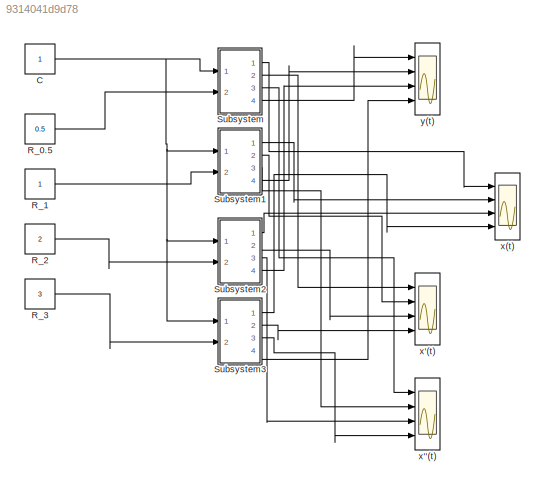
MODEL slx_9314041d9d78
KIND model
CONFIG AbsTol = auto
CONFIG FixedStep = auto
CONFIG MaxStep = auto
CONFIG MinStep = auto
CONFIG RelTol = 1e-3
CONFIG SampleTimeConstraint = Unconstrained
CONFIG Solver = VariableStepAuto
CONFIG SolverMode = Auto
CONFIG SolverName = VariableStepAuto
CONFIG StartTime = 0.0
CONFIG StopTime = 100.0
BLOCK [Constant] C
BLOCK [Constant] R_0.5
  Value = 0.5
BLOCK [Constant] R_1
BLOCK [Constant] R_2
  Value = 2
BLOCK [Constant] R_3
  Value = 3
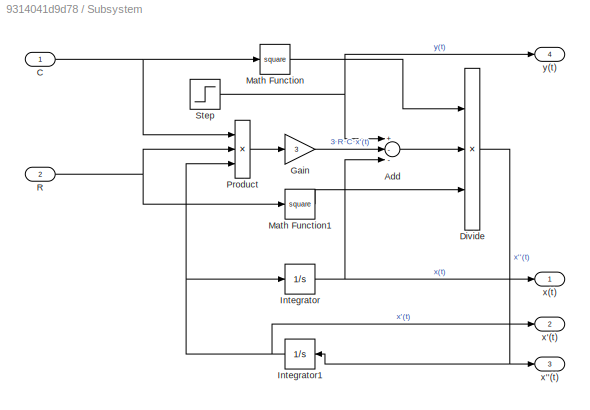
BLOCK [SubSystem] Subsystem
  Ports = [2, 4]
  RequestExecContextInheritance = off
  Variant = off
BLOCK [Sum] Subsystem/Add
  InputSameDT = off
  Inputs = +--
  OutDataTypeStr = Inherit: Inherit via internal rule
  Ports = [3, 1]
  SaturateOnIntegerOverflow = off
BLOCK [Inport] Subsystem/C
  IconDisplay = Port number
BLOCK [Product] Subsystem/Divide
  InputSameDT = off
  Inputs = /*/
  OutDataTypeStr = Inherit: Inherit via internal rule
  Ports = [3, 1]
  RndMeth = Floor
  SaturateOnIntegerOverflow = off
BLOCK [Gain] Subsystem/Gain
  Gain = 3
  OutDataTypeStr = Inherit: Inherit via internal rule
  ParamDataTypeStr = Inherit: Inherit via internal rule
  SaturateOnIntegerOverflow = off
BLOCK [Integrator] Subsystem/Integrator
  Ports = [1, 1]
BLOCK [Integrator] Subsystem/Integrator1
  Ports = [1, 1]
BLOCK [Math] Subsystem/Math Function
  Operator = square
  Ports = [1, 1]
BLOCK [Math] Subsystem/Math Function1
  Operator = square
  Ports = [1, 1]
BLOCK [Product] Subsystem/Product
  InputSameDT = off
  Inputs = 3
  OutDataTypeStr = Inherit: Inherit via internal rule
  Ports = [3, 1]
  RndMeth = Floor
  SaturateOnIntegerOverflow = off
BLOCK [Inport] Subsystem/R
  IconDisplay = Port number
  Port = 2
BLOCK [Step] Subsystem/Step
  SampleTime = 0
BLOCK [Outport] Subsystem/x''(t)
  IconDisplay = Port number
  Port = 3
BLOCK [Outport] Subsystem/x'(t)
  IconDisplay = Port number
  Port = 2
BLOCK [Outport] Subsystem/x(t)
  IconDisplay = Port number
BLOCK [Outport] Subsystem/y(t)
  IconDisplay = Port number
  Port = 4
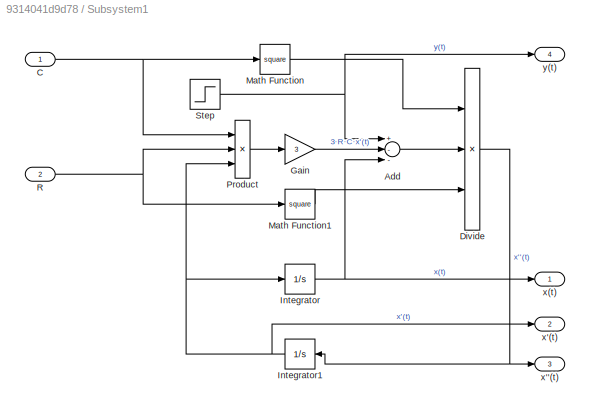
BLOCK [SubSystem] Subsystem1
  Ports = [2, 4]
  RequestExecContextInheritance = off
  Variant = off
BLOCK [Sum] Subsystem1/Add
  InputSameDT = off
  Inputs = +--
  OutDataTypeStr = Inherit: Inherit via internal rule
  Ports = [3, 1]
  SaturateOnIntegerOverflow = off
BLOCK [Inport] Subsystem1/C
  IconDisplay = Port number
BLOCK [Product] Subsystem1/Divide
  InputSameDT = off
  Inputs = /*/
  OutDataTypeStr = Inherit: Inherit via internal rule
  Ports = [3, 1]
  RndMeth = Floor
  SaturateOnIntegerOverflow = off
BLOCK [Gain] Subsystem1/Gain
  Gain = 3
  OutDataTypeStr = Inherit: Inherit via internal rule
  ParamDataTypeStr = Inherit: Inherit via internal rule
  SaturateOnIntegerOverflow = off
BLOCK [Integrator] Subsystem1/Integrator
  Ports = [1, 1]
BLOCK [Integrator] Subsystem1/Integrator1
  Ports = [1, 1]
BLOCK [Math] Subsystem1/Math Function
  Operator = square
  Ports = [1, 1]
BLOCK [Math] Subsystem1/Math Function1
  Operator = square
  Ports = [1, 1]
BLOCK [Product] Subsystem1/Product
  InputSameDT = off
  Inputs = 3
  OutDataTypeStr = Inherit: Inherit via internal rule
  Ports = [3, 1]
  RndMeth = Floor
  SaturateOnIntegerOverflow = off
BLOCK [Inport] Subsystem1/R
  IconDisplay = Port number
  Port = 2
BLOCK [Step] Subsystem1/Step
  SampleTime = 0
BLOCK [Outport] Subsystem1/x''(t)
  IconDisplay = Port number
  Port = 3
BLOCK [Outport] Subsystem1/x'(t)
  IconDisplay = Port number
  Port = 2
BLOCK [Outport] Subsystem1/x(t)
  IconDisplay = Port number
BLOCK [Outport] Subsystem1/y(t)
  IconDisplay = Port number
  Port = 4
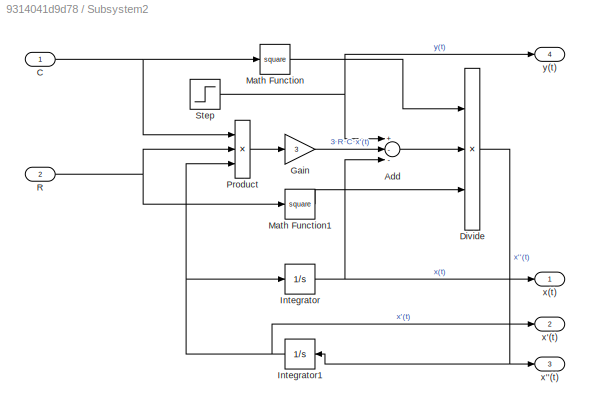
BLOCK [SubSystem] Subsystem2
  Ports = [2, 4]
  RequestExecContextInheritance = off
  Variant = off
BLOCK [Sum] Subsystem2/Add
  InputSameDT = off
  Inputs = +--
  OutDataTypeStr = Inherit: Inherit via internal rule
  Ports = [3, 1]
  SaturateOnIntegerOverflow = off
BLOCK [Inport] Subsystem2/C
  IconDisplay = Port number
BLOCK [Product] Subsystem2/Divide
  InputSameDT = off
  Inputs = /*/
  OutDataTypeStr = Inherit: Inherit via internal rule
  Ports = [3, 1]
  RndMeth = Floor
  SaturateOnIntegerOverflow = off
BLOCK [Gain] Subsystem2/Gain
  Gain = 3
  OutDataTypeStr = Inherit: Inherit via internal rule
  ParamDataTypeStr = Inherit: Inherit via internal rule
  SaturateOnIntegerOverflow = off
BLOCK [Integrator] Subsystem2/Integrator
  Ports = [1, 1]
BLOCK [Integrator] Subsystem2/Integrator1
  Ports = [1, 1]
BLOCK [Math] Subsystem2/Math Function
  Operator = square
  Ports = [1, 1]
BLOCK [Math] Subsystem2/Math Function1
  Operator = square
  Ports = [1, 1]
BLOCK [Product] Subsystem2/Product
  InputSameDT = off
  Inputs = 3
  OutDataTypeStr = Inherit: Inherit via internal rule
  Ports = [3, 1]
  RndMeth = Floor
  SaturateOnIntegerOverflow = off
BLOCK [Inport] Subsystem2/R
  IconDisplay = Port number
  Port = 2
BLOCK [Step] Subsystem2/Step
  SampleTime = 0
BLOCK [Outport] Subsystem2/x''(t)
  IconDisplay = Port number
  Port = 3
BLOCK [Outport] Subsystem2/x'(t)
  IconDisplay = Port number
  Port = 2
BLOCK [Outport] Subsystem2/x(t)
  IconDisplay = Port number
BLOCK [Outport] Subsystem2/y(t)
  IconDisplay = Port number
  Port = 4
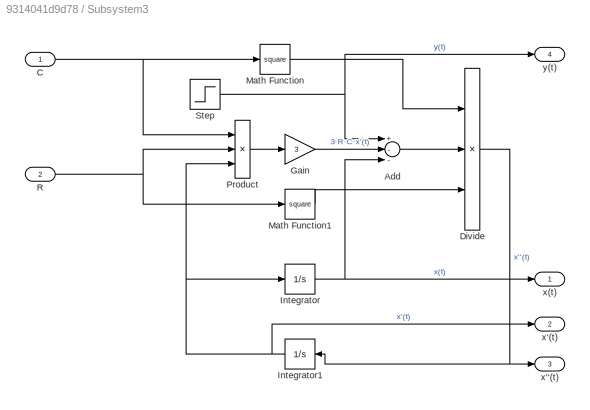
BLOCK [SubSystem] Subsystem3
  Ports = [2, 4]
  RequestExecContextInheritance = off
  Variant = off
BLOCK [Sum] Subsystem3/Add
  InputSameDT = off
  Inputs = +--
  OutDataTypeStr = Inherit: Inherit via internal rule
  Ports = [3, 1]
  SaturateOnIntegerOverflow = off
BLOCK [Inport] Subsystem3/C
  IconDisplay = Port number
BLOCK [Product] Subsystem3/Divide
  InputSameDT = off
  Inputs = /*/
  OutDataTypeStr = Inherit: Inherit via internal rule
  Ports = [3, 1]
  RndMeth = Floor
  SaturateOnIntegerOverflow = off
BLOCK [Gain] Subsystem3/Gain
  Gain = 3
  OutDataTypeStr = Inherit: Inherit via internal rule
  ParamDataTypeStr = Inherit: Inherit via internal rule
  SaturateOnIntegerOverflow = off
BLOCK [Integrator] Subsystem3/Integrator
  Ports = [1, 1]
BLOCK [Integrator] Subsystem3/Integrator1
  Ports = [1, 1]
BLOCK [Math] Subsystem3/Math Function
  Operator = square
  Ports = [1, 1]
BLOCK [Math] Subsystem3/Math Function1
  Operator = square
  Ports = [1, 1]
BLOCK [Product] Subsystem3/Product
  InputSameDT = off
  Inputs = 3
  OutDataTypeStr = Inherit: Inherit via internal rule
  Ports = [3, 1]
  RndMeth = Floor
  SaturateOnIntegerOverflow = off
BLOCK [Inport] Subsystem3/R
  IconDisplay = Port number
  Port = 2
BLOCK [Step] Subsystem3/Step
  SampleTime = 0
BLOCK [Outport] Subsystem3/x''(t)
  IconDisplay = Port number
  Port = 3
BLOCK [Outport] Subsystem3/x'(t)
  IconDisplay = Port number
  Port = 2
BLOCK [Outport] Subsystem3/x(t)
  IconDisplay = Port number
BLOCK [Outport] Subsystem3/y(t)
  IconDisplay = Port number
  Port = 4
BLOCK [Scope] x''(t)
  NumInputPorts = 4
  Ports = [4]
  ScopeSpecificationString = Simulink.scopes.TimeScopeBlockCfg('CurrentConfiguration', extmgr.ConfigurationSet(extmgr.Configuration('Core','General UI',true),extmgr.Configuration('Core','Source UI',true),extmgr.Configuration('Sources','WiredSimulink',true,'DataLoggingVariableName','ScopeData2'),extmgr.Configuration('Visuals','Time Domain',true,'SerializedDisplays',{struct('MinYLimReal','-0.83714','MaxYLimReal','4.53746','YLab...<+1472ch>
BLOCK [Scope] x'(t)
  NumInputPorts = 4
  Ports = [4]
  ScopeSpecificationString = Simulink.scopes.TimeScopeBlockCfg('CurrentConfiguration', extmgr.ConfigurationSet(extmgr.Configuration('Core','General UI',true),extmgr.Configuration('Core','Source UI',true),extmgr.Configuration('Sources','WiredSimulink',true,'DataLoggingVariableName','ScopeData1'),extmgr.Configuration('Visuals','Time Domain',true,'SerializedDisplays',{struct('MinYLimReal','-0.0687','MaxYLimReal','0.61222','YLabe...<+1462ch>
BLOCK [Scope] x(t)
  NumInputPorts = 4
  Ports = [4]
  ScopeSpecificationString = Simulink.scopes.TimeScopeBlockCfg('CurrentConfiguration', extmgr.ConfigurationSet(extmgr.Configuration('Core','General UI',true),extmgr.Configuration('Core','Source UI',true),extmgr.Configuration('Sources','WiredSimulink',true),extmgr.Configuration('Visuals','Time Domain',true,'SerializedDisplays',{struct('MinYLimReal','-0.12501','MaxYLimReal','1.12513','YLabelReal','','MinYLimMag','0.00000','MaxY...<+1434ch>
BLOCK [Scope] y(t)
  NumInputPorts = 4
  Ports = [4]
  ScopeSpecificationString = Simulink.scopes.TimeScopeBlockCfg('CurrentConfiguration', extmgr.ConfigurationSet(extmgr.Configuration('Core','General UI',true),extmgr.Configuration('Core','Source UI',true),extmgr.Configuration('Sources','WiredSimulink',true,'DataLoggingVariableName','ScopeData1'),extmgr.Configuration('Visuals','Time Domain',true,'SerializedDisplays',{struct('MinYLimReal','-0.125','MaxYLimReal','1.125','YLabelRe...<+1469ch>
NET C:1 -> Subsystem1:1, Subsystem2:1, Subsystem3:1, Subsystem:1
LINE R_0.5:1 -> Subsystem:2
LINE R_1:1 -> Subsystem1:2
LINE R_2:1 -> Subsystem2:2
LINE R_3:1 -> Subsystem3:2
LINE Subsystem/Add:1 -> Subsystem/Divide:2
NET Subsystem/C:1 -> Subsystem/Math Function:1, Subsystem/Product:1
NET Subsystem/Divide:1 -> Subsystem/Integrator1:1, Subsystem/x''(t):1
LINE Subsystem/Gain:1 -> Subsystem/Add:2
NET Subsystem/Integrator1:1 -> Subsystem/Integrator:1, Subsystem/Product:3, Subsystem/x'(t):1
NET Subsystem/Integrator:1 -> Subsystem/Add:3, Subsystem/x(t):1
LINE Subsystem/Math Function1:1 -> Subsystem/Divide:3
LINE Subsystem/Math Function:1 -> Subsystem/Divide:1
LINE Subsystem/Product:1 -> Subsystem/Gain:1
NET Subsystem/R:1 -> Subsystem/Math Function1:1, Subsystem/Product:2
NET Subsystem/Step:1 -> Subsystem/Add:1, Subsystem/y(t):1
LINE Subsystem1/Add:1 -> Subsystem1/Divide:2
NET Subsystem1/C:1 -> Subsystem1/Math Function:1, Subsystem1/Product:1
NET Subsystem1/Divide:1 -> Subsystem1/Integrator1:1, Subsystem1/x''(t):1
LINE Subsystem1/Gain:1 -> Subsystem1/Add:2
NET Subsystem1/Integrator1:1 -> Subsystem1/Integrator:1, Subsystem1/Product:3, Subsystem1/x'(t):1
NET Subsystem1/Integrator:1 -> Subsystem1/Add:3, Subsystem1/x(t):1
LINE Subsystem1/Math Function1:1 -> Subsystem1/Divide:3
LINE Subsystem1/Math Function:1 -> Subsystem1/Divide:1
LINE Subsystem1/Product:1 -> Subsystem1/Gain:1
NET Subsystem1/R:1 -> Subsystem1/Math Function1:1, Subsystem1/Product:2
NET Subsystem1/Step:1 -> Subsystem1/Add:1, Subsystem1/y(t):1
LINE Subsystem1:1 -> x(t):2
LINE Subsystem1:2 -> x'(t):2
LINE Subsystem1:3 -> x''(t):2
LINE Subsystem1:4 -> y(t):2
LINE Subsystem2/Add:1 -> Subsystem2/Divide:2
NET Subsystem2/C:1 -> Subsystem2/Math Function:1, Subsystem2/Product:1
NET Subsystem2/Divide:1 -> Subsystem2/Integrator1:1, Subsystem2/x''(t):1
LINE Subsystem2/Gain:1 -> Subsystem2/Add:2
NET Subsystem2/Integrator1:1 -> Subsystem2/Integrator:1, Subsystem2/Product:3, Subsystem2/x'(t):1
NET Subsystem2/Integrator:1 -> Subsystem2/Add:3, Subsystem2/x(t):1
LINE Subsystem2/Math Function1:1 -> Subsystem2/Divide:3
LINE Subsystem2/Math Function:1 -> Subsystem2/Divide:1
LINE Subsystem2/Product:1 -> Subsystem2/Gain:1
NET Subsystem2/R:1 -> Subsystem2/Math Function1:1, Subsystem2/Product:2
NET Subsystem2/Step:1 -> Subsystem2/Add:1, Subsystem2/y(t):1
LINE Subsystem2:1 -> x(t):3
LINE Subsystem2:2 -> x'(t):3
LINE Subsystem2:3 -> x''(t):3
LINE Subsystem2:4 -> y(t):3
LINE Subsystem3/Add:1 -> Subsystem3/Divide:2
NET Subsystem3/C:1 -> Subsystem3/Math Function:1, Subsystem3/Product:1
NET Subsystem3/Divide:1 -> Subsystem3/Integrator1:1, Subsystem3/x''(t):1
LINE Subsystem3/Gain:1 -> Subsystem3/Add:2
NET Subsystem3/Integrator1:1 -> Subsystem3/Integrator:1, Subsystem3/Product:3, Subsystem3/x'(t):1
NET Subsystem3/Integrator:1 -> Subsystem3/Add:3, Subsystem3/x(t):1
LINE Subsystem3/Math Function1:1 -> Subsystem3/Divide:3
LINE Subsystem3/Math Function:1 -> Subsystem3/Divide:1
LINE Subsystem3/Product:1 -> Subsystem3/Gain:1
NET Subsystem3/R:1 -> Subsystem3/Math Function1:1, Subsystem3/Product:2
NET Subsystem3/Step:1 -> Subsystem3/Add:1, Subsystem3/y(t):1
LINE Subsystem3:1 -> x(t):4
LINE Subsystem3:2 -> x'(t):4
LINE Subsystem3:3 -> x''(t):4
LINE Subsystem3:4 -> y(t):4
LINE Subsystem:1 -> x(t):1
LINE Subsystem:2 -> x'(t):1
LINE Subsystem:3 -> x''(t):1
LINE Subsystem:4 -> y(t):1
note: NET lines group one-source signal fan-out (src -> all destinations, sorted); 1:1 wires keep LINE
